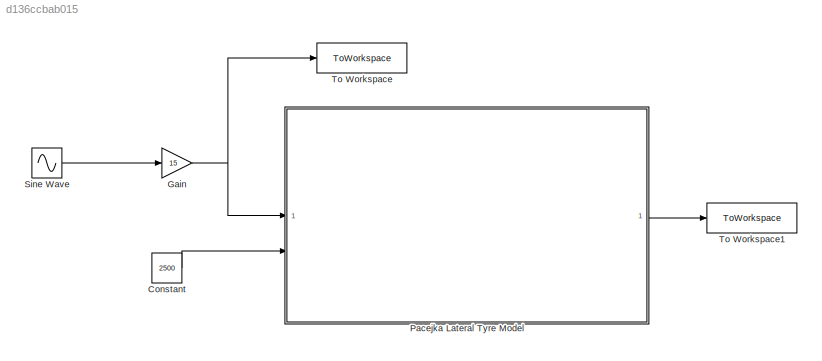
MODEL slx_d136ccbab015
KIND model
CONFIG AbsTol = auto
CONFIG EnableMultiTasking = off
CONFIG FixedStep = auto
CONFIG MaxStep = auto
CONFIG MinStep = auto
CONFIG RelTol = 1e-3
CONFIG SampleTimeConstraint = Unconstrained
CONFIG SolverName = VariableStepAuto
CONFIG StartTime = 0.0
CONFIG StopTime = 10.0
BLOCK [Constant] Constant
  Value = 2500
BLOCK [Gain] Gain
  Gain = 15
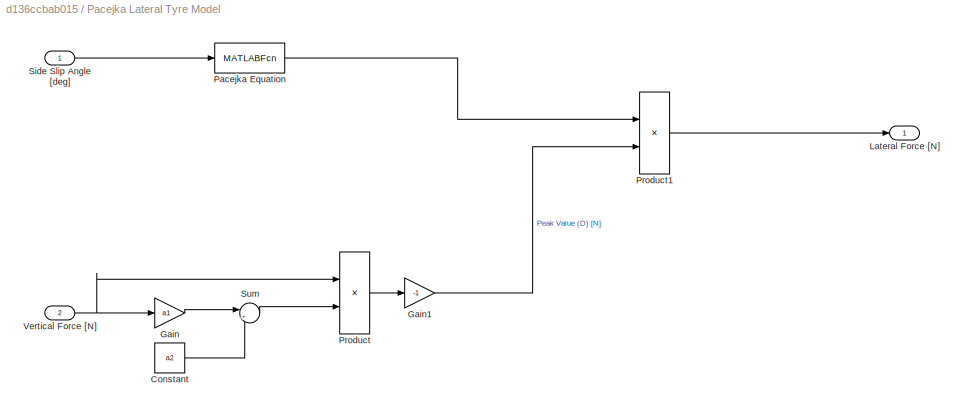
BLOCK [SubSystem] Pacejka Lateral Tyre Model
BLOCK [Constant] Pacejka Lateral Tyre Model/Constant
  Value = a2
BLOCK [Gain] Pacejka Lateral Tyre Model/Gain
  Gain = a1
BLOCK [Gain] Pacejka Lateral Tyre Model/Gain1
  Gain = -1
BLOCK [Outport] Pacejka Lateral Tyre Model/Lateral Force [N]
BLOCK [MATLABFcn] Pacejka Lateral Tyre Model/Pacejka Equation
  MATLABFcn = sin(C*atan(B*u-E*(B*u-atan(B*u))))
BLOCK [Product] Pacejka Lateral Tyre Model/Product
BLOCK [Product] Pacejka Lateral Tyre Model/Product1
BLOCK [Inport] Pacejka Lateral Tyre Model/Side Slip Angle [deg]
BLOCK [Sum] Pacejka Lateral Tyre Model/Sum
  Inputs = |++
BLOCK [Inport] Pacejka Lateral Tyre Model/Vertical Force [N]
  Port = 2
BLOCK [Sin] Sine Wave
  SampleTime = 0
BLOCK [ToWorkspace] To Workspace
  FixptAsFi = on
  MaxDataPoints = inf
  SampleTime = -1
  Save2DSignal = 2-D array (concatenate along first dimension)
  SaveFormat = Timeseries
  VariableName = Sideslip
BLOCK [ToWorkspace] To Workspace1
  FixptAsFi = on
  MaxDataPoints = inf
  SampleTime = -1
  Save2DSignal = 2-D array (concatenate along first dimension)
  SaveFormat = Timeseries
  VariableName = LateralForce
LINE Constant:1 -> Pacejka Lateral Tyre Model:2
NET Gain:1 -> Pacejka Lateral Tyre Model:1, To Workspace:1
LINE Pacejka Lateral Tyre Model/Constant:1 -> Pacejka Lateral Tyre Model/Sum:2
LINE Pacejka Lateral Tyre Model/Gain1:1 -> Pacejka Lateral Tyre Model/Product1:2
LINE Pacejka Lateral Tyre Model/Gain:1 -> Pacejka Lateral Tyre Model/Sum:1
LINE Pacejka Lateral Tyre Model/Pacejka Equation:1 -> Pacejka Lateral Tyre Model/Product1:1
LINE Pacejka Lateral Tyre Model/Product1:1 -> Pacejka Lateral Tyre Model/Lateral Force [N]:1
LINE Pacejka Lateral Tyre Model/Product:1 -> Pacejka Lateral Tyre Model/Gain1:1
LINE Pacejka Lateral Tyre Model/Side Slip Angle [deg]:1 -> Pacejka Lateral Tyre Model/Pacejka Equation:1
LINE Pacejka Lateral Tyre Model/Sum:1 -> Pacejka Lateral Tyre Model/Product:2
NET Pacejka Lateral Tyre Model/Vertical Force [N]:1 -> Pacejka Lateral Tyre Model/Gain:1, Pacejka Lateral Tyre Model/Product:1
LINE Pacejka Lateral Tyre Model:1 -> To Workspace1:1
LINE Sine Wave:1 -> Gain:1
note: NET lines group one-source signal fan-out (src -> all destinations, sorted); 1:1 wires keep LINE
